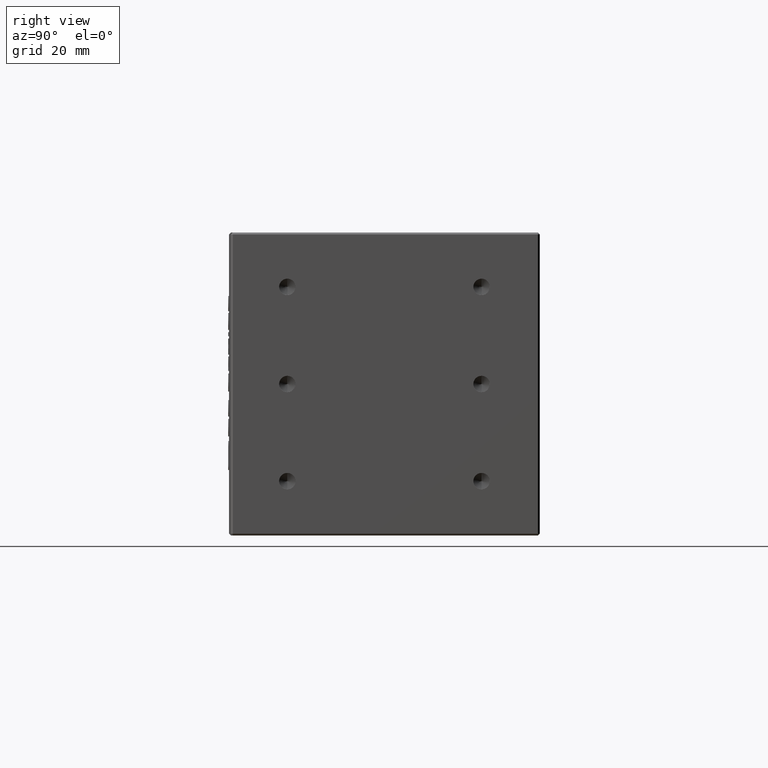
[diagram: clean part render]
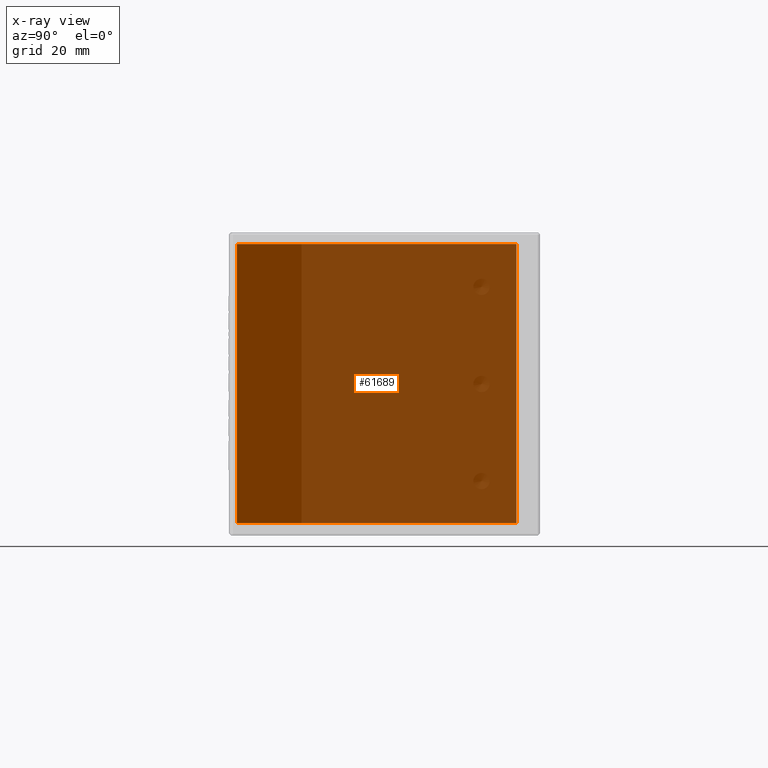
[diagram: x-ray — body ghosted, one internal face saturated and labeled with its STEP entity id]
A machine part, right view, then the same camera in x-ray: the body is ghosted and one INTERNAL B-rep face — a face not visible from any outside direction — is saturated and labeled: STEP entity #61689.
In plain terms, the highlighted planar face has unit normal (-0.7071, -0.7071, 0).
Its self-contained STEP definition (entity closure, byte-faithful):
#124 = VECTOR ( 'NONE', #69536, 999.9999999999998900 ) ;
#772 = VECTOR ( 'NONE', #9333, 1000.000000000000000 ) ;
#3647 = AXIS2_PLACEMENT_3D ( 'NONE', #50111, #17240, #55688 ) ;
#5819 = CARTESIAN_POINT ( 'NONE',  ( -32.94402392213646600, 56.06035582334342800, 75.00000000000956400 ) ) ;
#7928 = CARTESIAN_POINT ( 'NONE',  ( -32.94402392213646600, 56.06035582334342800, 3.200000000009563200 ) ) ;
#8058 = ORIENTED_EDGE ( 'NONE', *, *, #24890, .F. ) ;
#9333 = DIRECTION ( 'NONE',  ( 0.0000000000000000000, -0.0000000000000000000, -1.000000000000000000 ) ) ;
#10926 = EDGE_LOOP ( 'NONE', ( #8058, #64391, #58582, #41490 ) ) ;
#17004 = PLANE ( 'NONE',  #3647 ) ;
#17240 = DIRECTION ( 'NONE',  ( -0.7071067811865487900, -0.7071067811865463500, 0.0000000000000000000 ) ) ;
#19545 = EDGE_CURVE ( 'NONE', #57862, #52920, #45653, .T. ) ;
#20259 = CARTESIAN_POINT ( 'NONE',  ( -32.94402392213646600, 56.06035582334342800, 75.00000000000956400 ) ) ;
#21805 = VECTOR ( 'NONE', #32246, 1000.000000000000000 ) ;
#22874 = VERTEX_POINT ( 'NONE', #45565 ) ;
#24890 = EDGE_CURVE ( 'NONE', #52920, #59802, #44592, .T. ) ;
#25609 = CARTESIAN_POINT ( 'NONE',  ( -32.94402392213646600, 56.06035582334342800, 3.200000000009563200 ) ) ;
#25614 = CARTESIAN_POINT ( 'NONE',  ( -32.94402392213646600, 56.06035582334342800, 3.200000000009563200 ) ) ;
#28921 = VECTOR ( 'NONE', #69360, 999.9999999999998900 ) ;
#32246 = DIRECTION ( 'NONE',  ( -0.0000000000000000000, 0.0000000000000000000, 1.000000000000000000 ) ) ;
#41490 = ORIENTED_EDGE ( 'NONE', *, *, #67185, .F. ) ;
#44592 = LINE ( 'NONE', #25609, #772 ) ;
#45565 = CARTESIAN_POINT ( 'NONE',  ( 39.03944640265395800, -15.92311450144723400, 3.200000000009563200 ) ) ;
#45653 = LINE ( 'NONE', #20259, #124 ) ;
#45821 = CARTESIAN_POINT ( 'NONE',  ( 39.03944640265395800, -15.92311450144723400, 75.00000000000956400 ) ) ;
#49304 = LINE ( 'NONE', #59653, #21805 ) ;
#50111 = CARTESIAN_POINT ( 'NONE',  ( -32.94402392213646600, 56.06035582334342800, 3.200000000009563200 ) ) ;
#52920 = VERTEX_POINT ( 'NONE', #5819 ) ;
#55688 = DIRECTION ( 'NONE',  ( -0.0000000000000000000, 0.0000000000000000000, 1.000000000000000000 ) ) ;
#57862 = VERTEX_POINT ( 'NONE', #45821 ) ;
#58582 = ORIENTED_EDGE ( 'NONE', *, *, #60582, .F. ) ;
#59653 = CARTESIAN_POINT ( 'NONE',  ( 39.03944640265395800, -15.92311450144723400, 3.200000000009563200 ) ) ;
#59802 = VERTEX_POINT ( 'NONE', #7928 ) ;
#60582 = EDGE_CURVE ( 'NONE', #22874, #57862, #49304, .T. ) ;
#61171 = FACE_OUTER_BOUND ( 'NONE', #10926, .T. ) ;
#61689 = ADVANCED_FACE ( 'NONE', ( #61171 ), #17004, .F. ) ;
#64391 = ORIENTED_EDGE ( 'NONE', *, *, #19545, .F. ) ;
#67185 = EDGE_CURVE ( 'NONE', #59802, #22874, #71043, .T. ) ;
#69360 = DIRECTION ( 'NONE',  ( 0.7071067811865463500, -0.7071067811865487900, -0.0000000000000000000 ) ) ;
#69536 = DIRECTION ( 'NONE',  ( -0.7071067811865463500, 0.7071067811865487900, 0.0000000000000000000 ) ) ;
#71043 = LINE ( 'NONE', #25614, #28921 ) ;